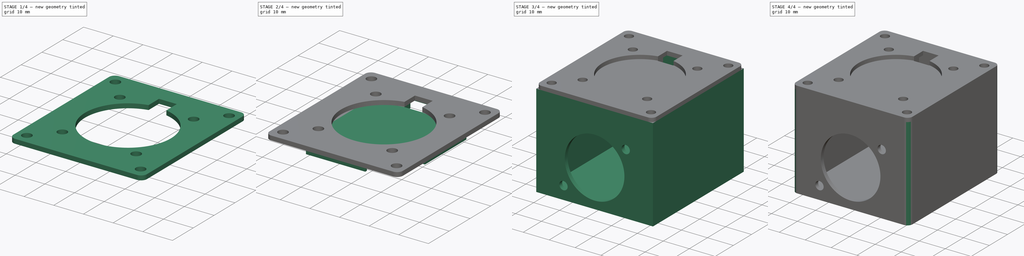
[diagram: build sequence overview — one tinted view per stage of 4, left to right]
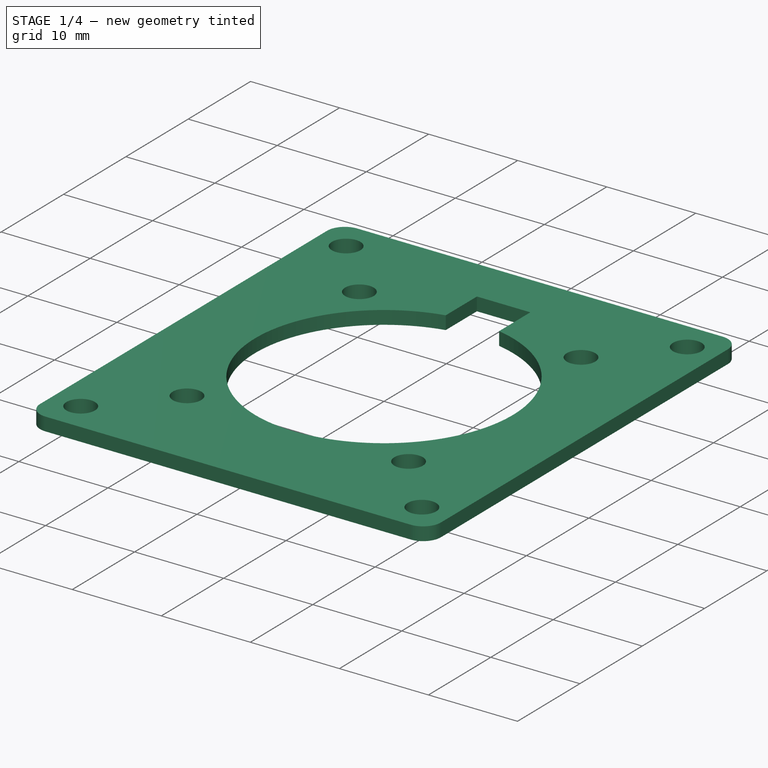
[diagram: stage 1 of 4 — iso view after this stage's code; geometry added in this stage tinted green]
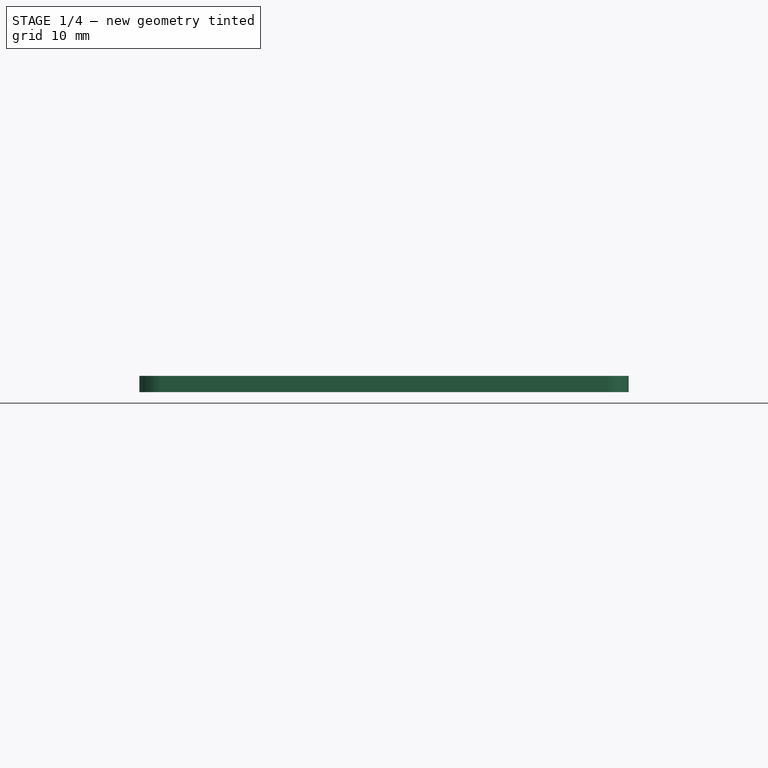
[diagram: stage 1 of 4 — front view after this stage's code; geometry added in this stage tinted green]
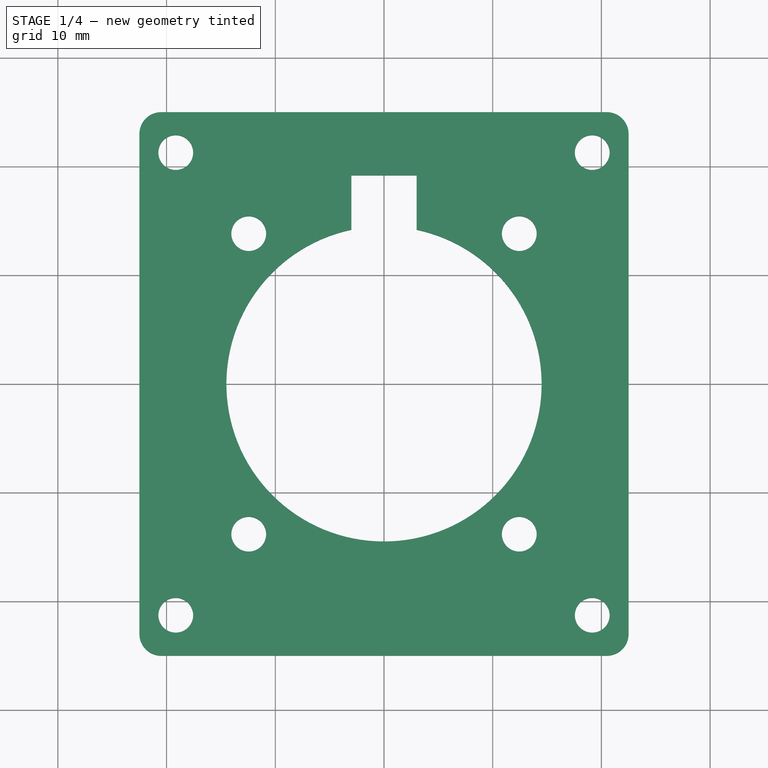
[diagram: stage 1 of 4 — top view after this stage's code; geometry added in this stage tinted green]
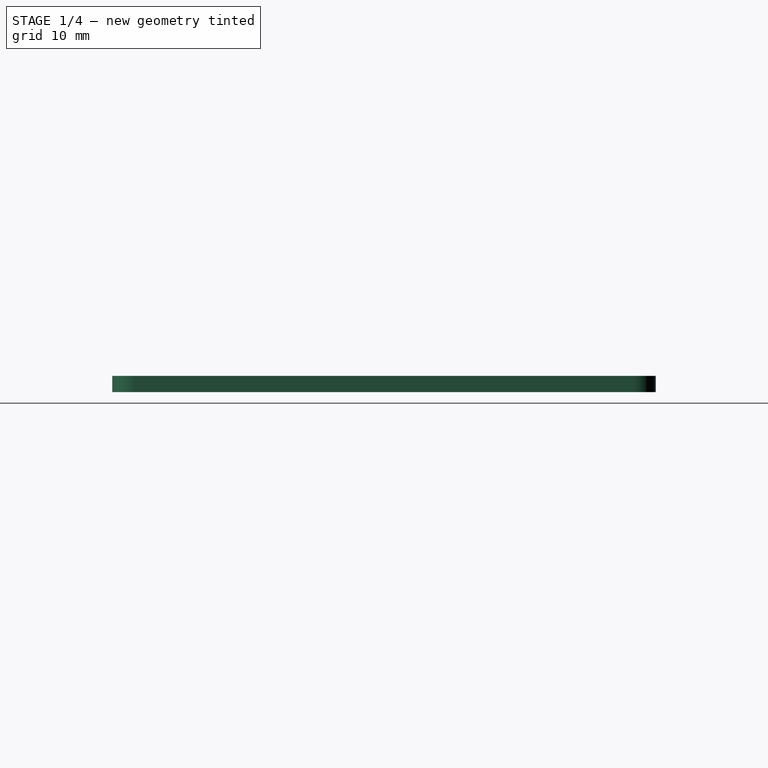
[diagram: stage 1 of 4 — right view after this stage's code; geometry added in this stage tinted green]
FCSTD DOCUMENT  (FreeCAD 0.19R24415 (Git))
Label: TAPhantomPowerCase
License: All rights reserved
LicenseURL: http://en.wikipedia.org/wiki/All_rights_reserved
objects: Sketcher::SketchObject×7, PartDesign::Pad×5, PartDesign::Fillet×3, PartDesign::Body×3, App::MeasureDistance×3, PartDesign::Pocket×2, PartDesign::ShapeBinder×2
note: 32 computed .brp shape members not serialized (recipe doc carries the construction recipe); baked Part::Feature solids carry a one-line shape summary decoded from their .brp

FEATURE [PartDesign::ShapeBinder] CopyPocket001
  Placement = pos=(0,0,35) rot=(0,0,1;0rad)
  TraceSupport = false
FEATURE [Sketcher::SketchObject] Sketch004
  FullyConstrained = true
  MapMode = 5
  Placement = pos=(0,0,36) rot=(0,0,1;0rad)
  Support = -> [CopyPocket001]
  sketch-geometry (18):
    g0: LineSegment StartX=-22.5 StartY=25 StartZ=0 EndX=22.5 EndY=25 EndZ=0
    g1: LineSegment StartX=22.5 StartY=25 StartZ=0 EndX=22.5 EndY=-25 EndZ=0
    g2: LineSegment StartX=22.5 StartY=-25 StartZ=0 EndX=-22.5 EndY=-25 EndZ=0
    g3: LineSegment StartX=-22.5 StartY=-25 StartZ=0 EndX=-22.5 EndY=25 EndZ=0
    g4: LineSegment StartX=-22.5 StartY=25 StartZ=0 EndX=22.5 EndY=-25 EndZ=0
    g5: LineSegment StartX=22.5 StartY=25 StartZ=0 EndX=-22.5 EndY=-25 EndZ=0
    g6: Circle CenterX=-19.1552 CenterY=21.2835 CenterZ=0 NormalX=0 NormalY=0 NormalZ=1 AngleXU=0 Radius=1.6
    g7: Circle CenterX=19.1552 CenterY=21.2835 CenterZ=0 NormalX=0 NormalY=0 NormalZ=1 AngleXU=0 Radius=1.6
    g8: Circle CenterX=19.1552 CenterY=-21.2835 CenterZ=0 NormalX=0 NormalY=0 NormalZ=1 AngleXU=0 Radius=1.6
    g9: Circle CenterX=-19.1552 CenterY=-21.2835 CenterZ=0 NormalX=0 NormalY=0 NormalZ=1 AngleXU=0 Radius=1.6
    g10: ArcOfCircle CenterX=0 CenterY=0 CenterZ=0 NormalX=0 NormalY=0 NormalZ=1 AngleXU=0 Radius=14.5 StartAngle=1.7792 EndAngle=7.64558
    g11: Circle CenterX=12.4427 CenterY=13.8253 CenterZ=0 NormalX=0 NormalY=0 NormalZ=1 AngleXU=0 Radius=1.6
    g12: Circle CenterX=-12.4427 CenterY=13.8253 CenterZ=0 NormalX=0 NormalY=0 NormalZ=1 AngleXU=0 Radius=1.6
    g13: Circle CenterX=-12.4427 CenterY=-13.8253 CenterZ=0 NormalX=0 NormalY=0 NormalZ=1 AngleXU=0 Radius=1.6
    g14: Circle CenterX=12.4427 CenterY=-13.8253 CenterZ=0 NormalX=0 NormalY=0 NormalZ=1 AngleXU=0 Radius=1.6
    g15: LineSegment StartX=-3 StartY=14.1863 StartZ=0 EndX=-3 EndY=19.1863 EndZ=0
    g16: LineSegment StartX=-3 StartY=19.1863 StartZ=0 EndX=3 EndY=19.1863 EndZ=0
    g17: LineSegment StartX=3 StartY=19.1863 StartZ=0 EndX=3 EndY=14.1863 EndZ=0
  constraints (49):
    c: Coincident(g0,g1)
    c: Coincident(g1,g2)
    c: Coincident(g2,g3)
    c: Coincident(g3,g0)
    c: Horizontal(g2)
    c: Vertical(g1)
    c: Distance(g1) = 50
    c: Distance(g0) = 45
    c: Symmetric(g0,g2,g-1)
    c: Symmetric(g0,g0,g-2)
    c: Coincident(g4,g0)
    c: Coincident(g4,g1)
    c: Coincident(g5,g0)
    c: Coincident(g5,g2)
    c: PointOnObject(g6,g4)
    c: PointOnObject(g7,g5)
    c: PointOnObject(g8,g4)
    c: PointOnObject(g9,g5)
    c: Horizontal(g9,g8)
    c: Horizontal(g6,g7)
    c: Vertical(g6,g9)
    c: Diameter(g6) = 3.2
    c: Diameter(g7) = 3.2
    c: Diameter(g9) = 3.2
    c: Diameter(g8) = 3.2
    c: Distance(g6,g0) = 5
    c: Coincident(g10,g-1)
    c: PointOnObject(g11,g5)
    c: PointOnObject(g12,g4)
    c: PointOnObject(g13,g5)
    c: PointOnObject(g14,g4)
    c: Vertical(g15)
    c: Coincident(g16,g15)
    c: Vertical(g17)
    c: Symmetric(g15,g16,g-2)
    c: Distance(g17) = 5
    c: Distance(g16) = 6
    c: Diameter(g10) = 29
    c: Horizontal(g12,g11)
    c: Horizontal(g14,g13)
    c: Vertical(g13,g12)
    c: Diameter(g12) = 3.2
    c: Diameter(g11) = 3.2
    c: Diameter(g14) = 3.2
    c: Diameter(g13) = 3.2
    c: Coincident(g16,g17)
    c: Distance(g12,g10) = 18.6
    c: Coincident(g10,g15)
    c: Coincident(g10,g17)
FEATURE [PartDesign::Pad] Pad002
  Direction = (1,1,1)
  Length = 1.5
  Length2 = 100
  Placement = pos=(0,0,35) rot=(0,0,1;0rad)
  Profile = -> Sketch004
  Type = 0
FEATURE [PartDesign::Body] Body  label="Case"
  Group = -> [Sketch,Pad,Sketch001,Pad001,Sketch002,Pocket,Sketch003,Pocket001,Fillet]
  Origin = -> Origin
  Tip = -> Fillet
FEATURE [PartDesign::Fillet] Fillet001
  Base = -> Pad002 [Edge1,Edge2,Edge5,Edge8]
  BaseFeature = -> Pad002
  Placement = pos=(0,0,35) rot=(0,0,1;0rad)
  Radius = 2
  SupportTransform = false
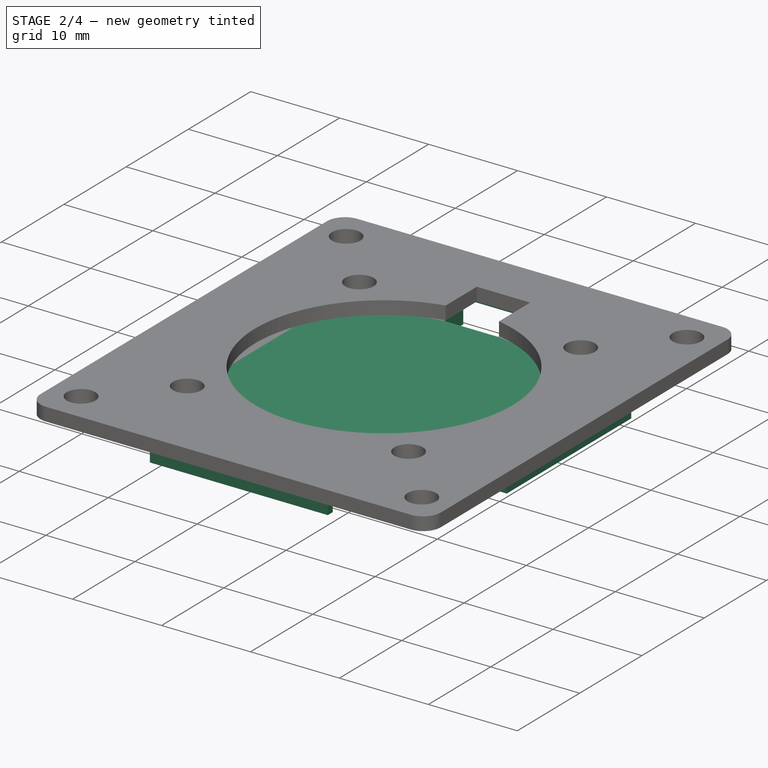
[diagram: stage 2 of 4 — iso view after this stage's code; geometry added in this stage tinted green]
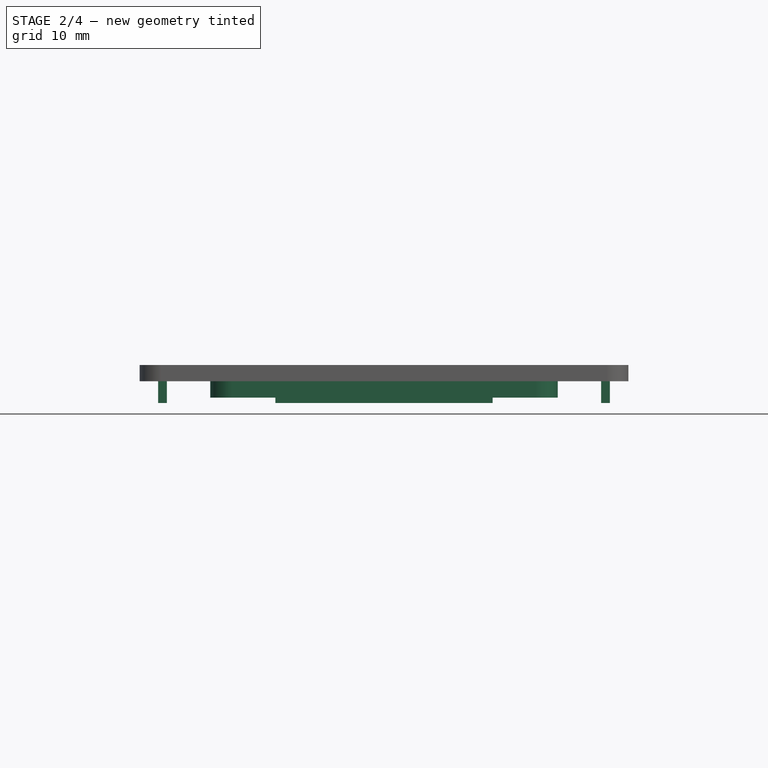
[diagram: stage 2 of 4 — front view after this stage's code; geometry added in this stage tinted green]
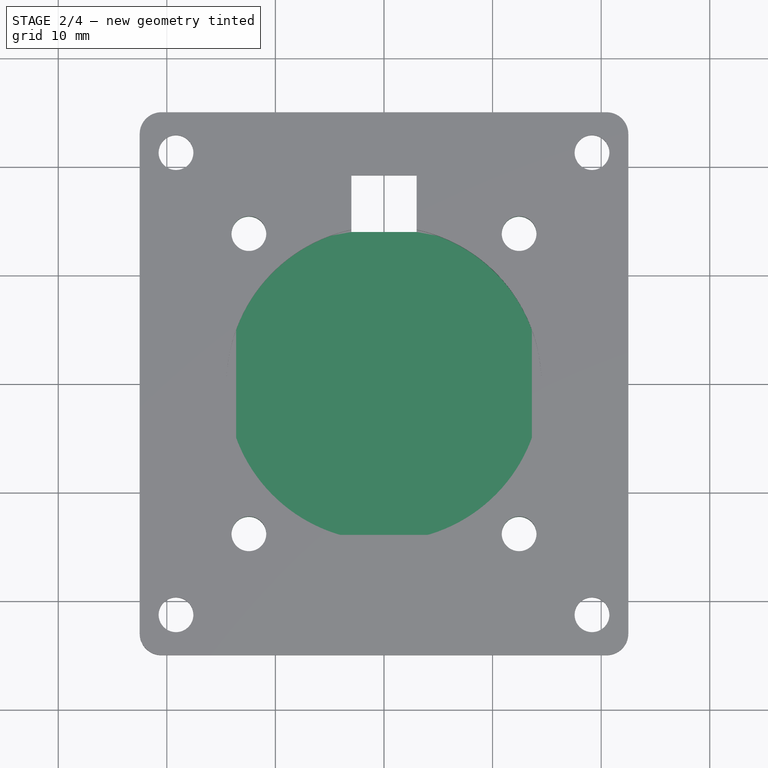
[diagram: stage 2 of 4 — top view after this stage's code; geometry added in this stage tinted green]
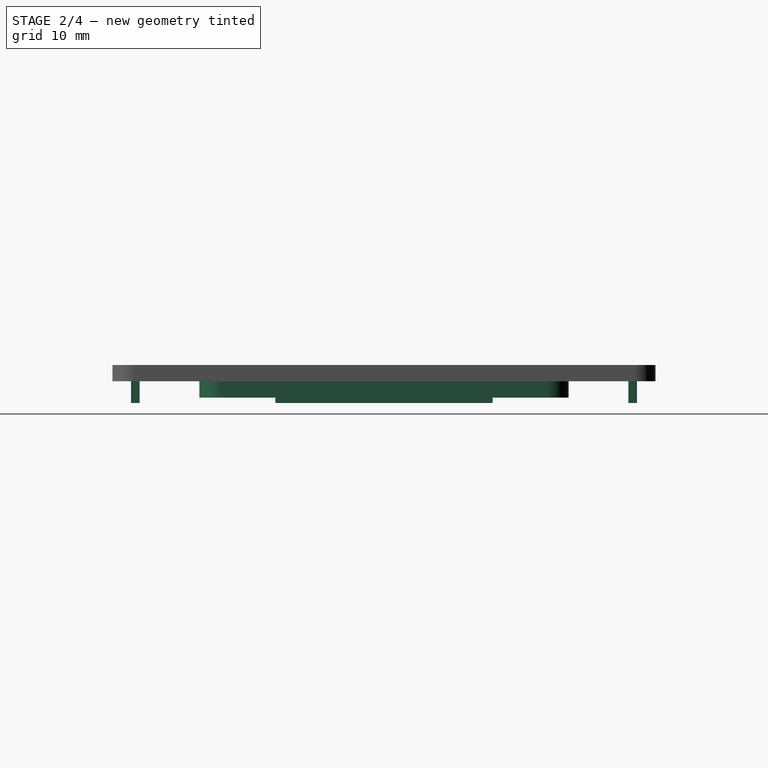
[diagram: stage 2 of 4 — right view after this stage's code; geometry added in this stage tinted green]
FEATURE [PartDesign::ShapeBinder] CopyPad003
  Placement = pos=(0,0,35) rot=(0,0,1;0rad)
  TraceSupport = false
FEATURE [Sketcher::SketchObject] Sketch006
  FullyConstrained = true
  MapMode = 5
  Placement = pos=(0,0,36) rot=(1,0,0;3.14159rad)
  Support = -> [CopyPad003]
  expr: Constraints[17] = 17 * 2
  sketch-geometry (18):
    g0: LineSegment StartX=-16 StartY=17 StartZ=0 EndX=16 EndY=17 EndZ=0
    g1: LineSegment StartX=16 StartY=17 StartZ=0 EndX=16 EndY=-17 EndZ=0
    g2: LineSegment StartX=16 StartY=-17 StartZ=0 EndX=3 EndY=-17 EndZ=0
    g3: LineSegment StartX=-16 StartY=-17 StartZ=0 EndX=-16 EndY=17 EndZ=0
    g4: LineSegment StartX=-22.5 StartY=25 StartZ=0 EndX=22.5 EndY=25 EndZ=0
    g5: LineSegment StartX=22.5 StartY=25 StartZ=0 EndX=22.5 EndY=-25 EndZ=0
    g6: LineSegment StartX=22.5 StartY=-25 StartZ=0 EndX=-22.5 EndY=-25 EndZ=0
    g7: LineSegment StartX=-22.5 StartY=-25 StartZ=0 EndX=-22.5 EndY=25 EndZ=0
    g8: Circle CenterX=-12.4427 CenterY=13.8253 CenterZ=0 NormalX=0 NormalY=0 NormalZ=1 AngleXU=0 Radius=1.6
    g9: Circle CenterX=12.4427 CenterY=13.8253 CenterZ=0 NormalX=0 NormalY=0 NormalZ=1 AngleXU=0 Radius=1.6
    g10: Circle CenterX=-12.4427 CenterY=-13.8253 CenterZ=0 NormalX=0 NormalY=0 NormalZ=1 AngleXU=0 Radius=1.6
    g11: Circle CenterX=12.4427 CenterY=-13.8253 CenterZ=0 NormalX=0 NormalY=0 NormalZ=1 AngleXU=0 Radius=1.6
    g12: LineSegment StartX=-3 StartY=-17 StartZ=0 EndX=-3 EndY=-14 EndZ=0
    g13: LineSegment StartX=-3 StartY=-14 StartZ=0 EndX=3 EndY=-14 EndZ=0
    g14: LineSegment StartX=3 StartY=-14 StartZ=0 EndX=3 EndY=-17 EndZ=0
    g15: LineSegment StartX=-22.5 StartY=25 StartZ=0 EndX=22.5 EndY=-25 EndZ=0
    g16: LineSegment StartX=22.5 StartY=25 StartZ=0 EndX=-22.5 EndY=-25 EndZ=0
    g17: LineSegment StartX=-3 StartY=-17 StartZ=0 EndX=-16 EndY=-17 EndZ=0
  constraints (46):
    c: Coincident(g0,g1)
    c: Coincident(g1,g2)
    c: Coincident(g17,g3)
    c: Coincident(g3,g0)
    c: Horizontal(g2)
    c: Vertical(g3)
    c: Coincident(g4,g5)
    c: Coincident(g5,g6)
    c: Coincident(g6,g7)
    c: Coincident(g7,g4)
    c: Horizontal(g6)
    c: Vertical(g7)
    c: Distance(g4) = 45
    c: Distance(g5) = 50
    c: Symmetric(g4,g4,g-2)
    c: Symmetric(g4,g5,g-1)
    c: Distance(g0) = 32
    c: Distance(g1) = 34
    c: Symmetric(g0,g0,g-2)
    c: Symmetric(g0,g1,g-1)
    c: Coincident(g14,g13)
    c: Coincident(g15,g4)
    c: Coincident(g15,g5)
    c: Coincident(g16,g4)
    c: Coincident(g16,g6)
    c: Diameter(g8) = 3.2
    c: Diameter(g9) = 3.2
    c: Diameter(g11) = 3.2
    c: Diameter(g10) = 3.2
    c: PointOnObject(g8,g15)
    c: PointOnObject(g9,g16)
    c: PointOnObject(g11,g15)
    c: PointOnObject(g10,g16)
    c: Horizontal(g10,g11)
    c: Horizontal(g8,g9)
    c: Vertical(g8,g10)
    c: Distance(g-1,g8) = 18.6
    c: Vertical(g12)
    c: Vertical(g14)
    c: Symmetric(g13,g13,g-2)
    c: Coincident(g12,g13)
    c: Distance(g14) = 3
    c: Distance(g13) = 6
    c: Coincident(g2,g14)
    c: Coincident(g17,g12)
    c: Tangent(g2,g17)
FEATURE [PartDesign::Pad] Pad003
  Direction = (1,1,1)
  Length = 1.5
  Length2 = 100
  Placement = pos=(0,0,35) rot=(0,0,1;0rad)
  Profile = -> Sketch006
  Type = 0
FEATURE [PartDesign::Fillet] Fillet002
  Base = -> Pad003 [Edge2,Edge5,Edge11,Edge8]
  BaseFeature = -> Pad003
  Placement = pos=(0,0,35) rot=(0,0,1;0rad)
  Radius = 2
  SupportTransform = false
FEATURE [PartDesign::Body] Body002  label="SocketHolder"
  Group = -> [CopyPad003,Sketch006,Pad003,Fillet002]
  Origin = -> Origin002
  Tip = -> Fillet002
FEATURE [App::MeasureDistance] Distance  label="Distance: 37,48 mm"
  Distance = 37.4811
  P1 = (20.5,25,37.5)
  P2 = (20.5,25,0.0189125)
FEATURE [App::MeasureDistance] Distance001  label="Distance: 46,80 mm"
  Distance = 46.8
  P1 = (-18.9,23.4,36)
  P2 = (-18.9,-23.4,36)
FEATURE [App::MeasureDistance] Distance002  label="Distance: 41,80 mm"
  Distance = 41.8
  P1 = (-20.9,21.4,36)
  P2 = (20.9,21.4,36)
FEATURE [Sketcher::SketchObject] Sketch007
  ExternalGeometry = -> [Sketch004]
  FullyConstrained = true
  MapMode = 5
  Placement = pos=(0,0,36) rot=(1,0,0;3.14159rad)
  Support = -> [Fillet001]
  sketch-geometry (16):
    g0: LineSegment StartX=-10 StartY=23.3 StartZ=0 EndX=10 EndY=23.3 EndZ=0
    g1: LineSegment StartX=10 StartY=23.3 StartZ=0 EndX=10 EndY=22.5 EndZ=0
    g2: LineSegment StartX=10 StartY=22.5 StartZ=0 EndX=-10 EndY=22.5 EndZ=0
    g3: LineSegment StartX=-10 StartY=22.5 StartZ=0 EndX=-10 EndY=23.3 EndZ=0
    g4: LineSegment StartX=20.8 StartY=10 StartZ=0 EndX=20 EndY=10 EndZ=0
    g5: LineSegment StartX=20 StartY=10 StartZ=0 EndX=20 EndY=-10 EndZ=0
    g6: LineSegment StartX=20 StartY=-10 StartZ=0 EndX=20.8 EndY=-10 EndZ=0
    g7: LineSegment StartX=20.8 StartY=-10 StartZ=0 EndX=20.8 EndY=10 EndZ=0
    g8: LineSegment StartX=-10 StartY=-23.3 StartZ=0 EndX=10 EndY=-23.3 EndZ=0
    g9: LineSegment StartX=10 StartY=-23.3 StartZ=0 EndX=10 EndY=-22.5 EndZ=0
    g10: LineSegment StartX=10 StartY=-22.5 StartZ=0 EndX=-10 EndY=-22.5 EndZ=0
    g11: LineSegment StartX=-10 StartY=-22.5 StartZ=0 EndX=-10 EndY=-23.3 EndZ=0
    g12: LineSegment StartX=-20 StartY=-10 StartZ=0 EndX=-20.8 EndY=-10 EndZ=0
    g13: LineSegment StartX=-20.8 StartY=-10 StartZ=0 EndX=-20.8 EndY=10 EndZ=0
    g14: LineSegment StartX=-20.8 StartY=10 StartZ=0 EndX=-20 EndY=10 EndZ=0
    g15: LineSegment StartX=-20 StartY=10 StartZ=0 EndX=-20 EndY=-10 EndZ=0
  constraints (46):
    c: Coincident(g0,g1)
    c: Coincident(g1,g2)
    c: Coincident(g2,g3)
    c: Coincident(g3,g0)
    c: Horizontal(g2)
    c: Vertical(g1)
    c: Vertical(g3)
    c: Coincident(g4,g5)
    c: Coincident(g5,g6)
    c: Coincident(g6,g7)
    c: Coincident(g7,g4)
    c: Horizontal(g4)
    c: Horizontal(g6)
    c: Vertical(g5)
    c: Coincident(g8,g9)
    c: Coincident(g9,g10)
    c: Coincident(g10,g11)
    c: Coincident(g11,g8)
    c: Horizontal(g8)
    c: Horizontal(g10)
    c: Vertical(g9)
    c: Vertical(g11)
    c: Coincident(g12,g13)
    c: Coincident(g13,g14)
    c: Coincident(g14,g15)
    c: Coincident(g15,g12)
    c: Horizontal(g12)
    c: Horizontal(g14)
    c: Vertical(g13)
    c: Vertical(g15)
    c: Vertical(g2,g10)
    c: Vertical(g9,g1)
    c: Horizontal(g4,g14)
    c: Horizontal(g12,g5)
    c: Symmetric(g4,g6,g-1)
    c: Symmetric(g0,g0,g-2)
    c: DistanceX(g-6,g13) = 1.7
    c: Distance(g14) = 0.8
    c: Distance(g3) = 0.8
    c: Distance(g4) = 0.8
    c: Distance(g11) = 0.8
    c: DistanceX(g4,g-4) = 1.7
    c: DistanceY(g0,g-6) = 1.7
    c: DistanceY(g-6,g8) = 1.7
    c: Distance(g2) = 20
    c: Distance(g5) = 20
FEATURE [PartDesign::Pad] Pad004
  BaseFeature = -> Fillet001
  Direction = (1,1,1)
  Length = 2
  Length2 = 100
  Placement = pos=(0,0,35) rot=(0,0,1;0rad)
  Profile = -> Sketch007
  Type = 0
FEATURE [PartDesign::Body] Body001  label="Lid"
  Group = -> [CopyPocket001,Sketch004,Pad002,Fillet001,Sketch007,Pad004]
  Origin = -> Origin001
  Tip = -> Pad004
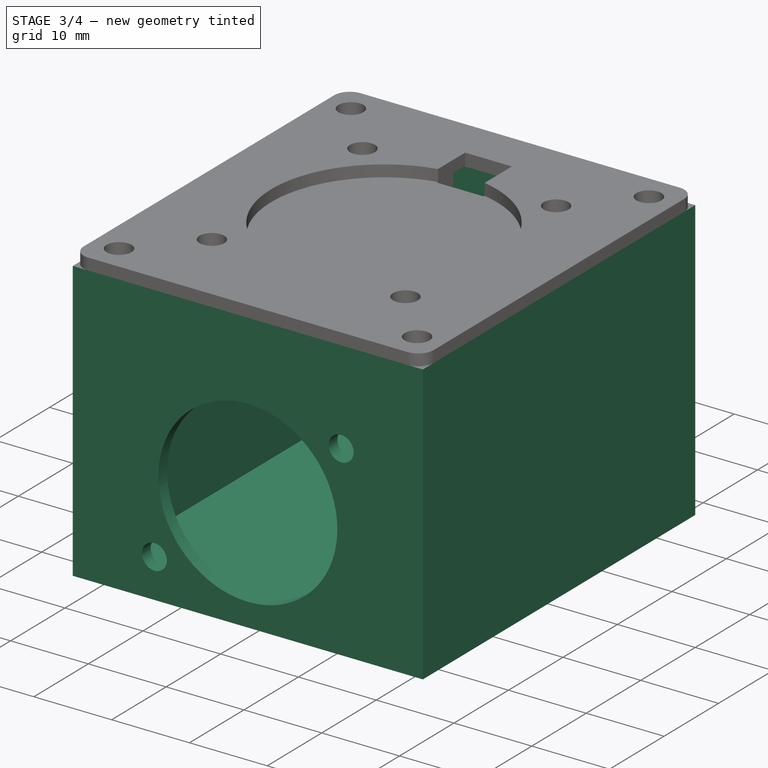
[diagram: stage 3 of 4 — iso view after this stage's code; geometry added in this stage tinted green]
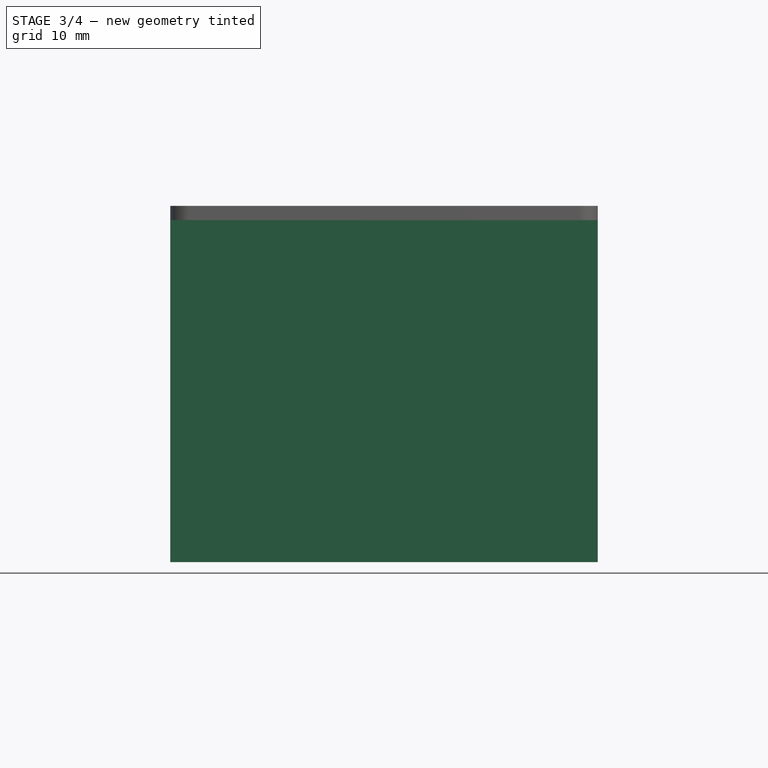
[diagram: stage 3 of 4 — front view after this stage's code; geometry added in this stage tinted green]
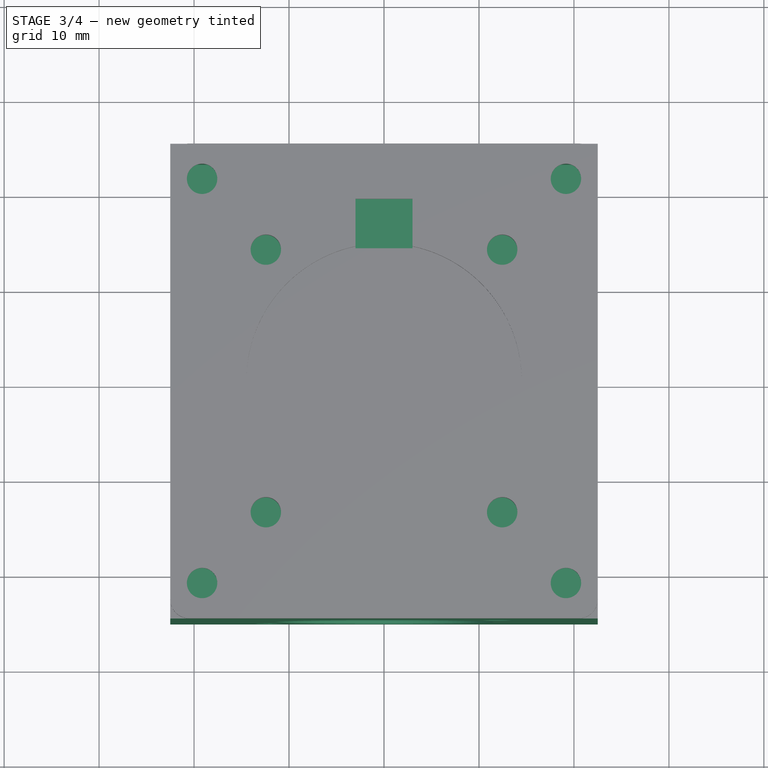
[diagram: stage 3 of 4 — top view after this stage's code; geometry added in this stage tinted green]
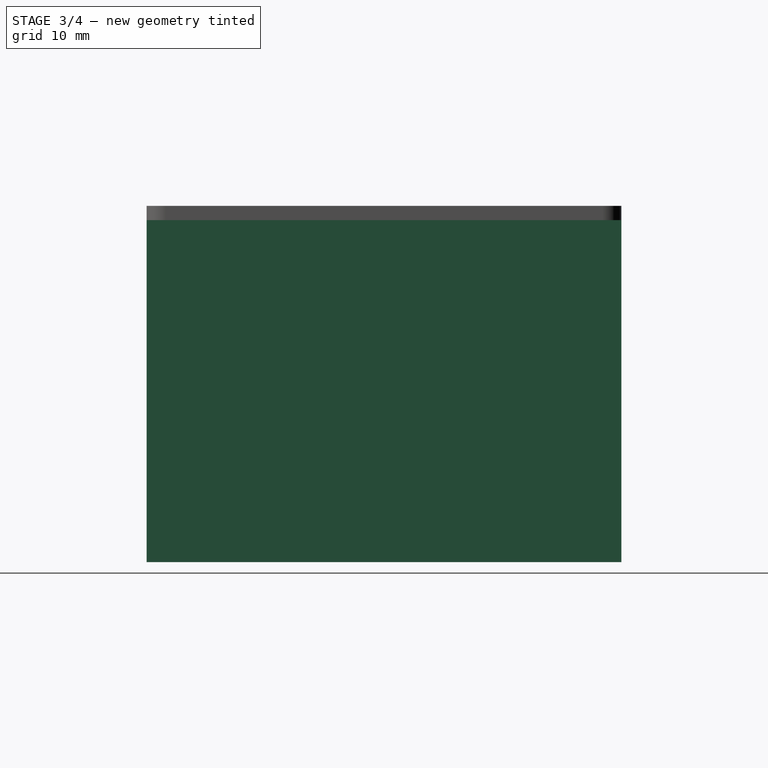
[diagram: stage 3 of 4 — right view after this stage's code; geometry added in this stage tinted green]
FEATURE [Sketcher::SketchObject] Sketch
  FullyConstrained = true
  MapMode = 5
  Support = -> [XY_Plane]
  sketch-geometry (4):
    g0: LineSegment StartX=-22.5 StartY=25 StartZ=0 EndX=22.5 EndY=25 EndZ=0
    g1: LineSegment StartX=22.5 StartY=25 StartZ=0 EndX=22.5 EndY=-25 EndZ=0
    g2: LineSegment StartX=22.5 StartY=-25 StartZ=0 EndX=-22.5 EndY=-25 EndZ=0
    g3: LineSegment StartX=-22.5 StartY=-25 StartZ=0 EndX=-22.5 EndY=25 EndZ=0
  constraints (10):
    c: Coincident(g0,g1)
    c: Coincident(g1,g2)
    c: Coincident(g2,g3)
    c: Coincident(g3,g0)
    c: Horizontal(g0)
    c: Vertical(g1)
    c: Symmetric(g2,g1,g-2)
    c: Symmetric(g0,g2,g-1)
    c: Distance(g3) = 50
    c: Distance(g2) = 45
FEATURE [PartDesign::Pad] Pad
  Direction = (1,1,1)
  Length = 1
  Length2 = 100
  Profile = -> Sketch
  Type = 0
FEATURE [Sketcher::SketchObject] Sketch001
  ExternalGeometry = -> [Pad]
  FullyConstrained = true
  MapMode = 5
  Placement = pos=(0,0,1) rot=(0,0,1;0rad)
  Support = -> [Pad]
  sketch-geometry (8):
    g0: LineSegment StartX=-22.5 StartY=25 StartZ=0 EndX=22.5 EndY=25 EndZ=0
    g1: LineSegment StartX=22.5 StartY=25 StartZ=0 EndX=22.5 EndY=-25 EndZ=0
    g2: LineSegment StartX=22.5 StartY=-25 StartZ=0 EndX=-22.5 EndY=-25 EndZ=0
    g3: LineSegment StartX=-22.5 StartY=-25 StartZ=0 EndX=-22.5 EndY=25 EndZ=0
    g4: LineSegment StartX=-20.9 StartY=23.4 StartZ=0 EndX=20.9 EndY=23.4 EndZ=0
    g5: LineSegment StartX=20.9 StartY=23.4 StartZ=0 EndX=20.9 EndY=-23.4 EndZ=0
    g6: LineSegment StartX=20.9 StartY=-23.4 StartZ=0 EndX=-20.9 EndY=-23.4 EndZ=0
    g7: LineSegment StartX=-20.9 StartY=-23.4 StartZ=0 EndX=-20.9 EndY=23.4 EndZ=0
  constraints (20):
    c: Coincident(g0,g1)
    c: Coincident(g1,g2)
    c: Coincident(g2,g3)
    c: Coincident(g3,g0)
    c: Horizontal(g0)
    c: Horizontal(g2)
    c: Vertical(g1)
    c: Vertical(g3)
    c: Coincident(g0,g-3)
    c: Coincident(g1,g-4)
    c: Coincident(g4,g5)
    c: Coincident(g5,g6)
    c: Coincident(g6,g7)
    c: Coincident(g7,g4)
    c: Horizontal(g6)
    c: Vertical(g5)
    c: Symmetric(g6,g4,g-1)
    c: Symmetric(g4,g4,g-2)
    c: DistanceX(g0,g4) = 1.6
    c: DistanceY(g4,g0) = 1.6
FEATURE [PartDesign::Pad] Pad001
  BaseFeature = -> Pad
  Direction = (1,1,1)
  Length = 35
  Length2 = 100
  Profile = -> Sketch001
  Type = 0
FEATURE [Sketcher::SketchObject] Sketch002
  ExternalGeometry = -> [Pad001]
  FullyConstrained = true
  MapMode = 5
  Placement = pos=(0,-25,0) rot=(1,0,0;1.5708rad)
  Support = -> [Pad001]
  expr: Constraints[7] = 24 / 2
  expr: Constraints[6] = 19 / 2
  sketch-geometry (3):
    g0: Circle CenterX=0 CenterY=14.5 CenterZ=0 NormalX=0 NormalY=0 NormalZ=1 AngleXU=0 Radius=11.5
    g1: Circle CenterX=12 CenterY=24 CenterZ=0 NormalX=0 NormalY=0 NormalZ=1 AngleXU=0 Radius=1.6
    g2: Circle CenterX=-12 CenterY=5 CenterZ=0 NormalX=0 NormalY=0 NormalZ=1 AngleXU=0 Radius=1.6
  constraints (9):
    c: PointOnObject(g0,g-2)
    c: Diameter(g0) = 23
    c: Diameter(g1) = 3.2
    c: Diameter(g2) = 3.2
    c: DistanceX(g2,g1) = 24
    c: DistanceY(g2,g1) = 19
    c: DistanceY(g2,g0) = 9.5
    c: DistanceX(g2,g0) = 12
    c: DistanceY(g-3,g2) = 4
FEATURE [PartDesign::Pocket] Pocket
  BaseFeature = -> Pad001
  Length = 5
  Length2 = 100
  Profile = -> Sketch002
  Type = 0
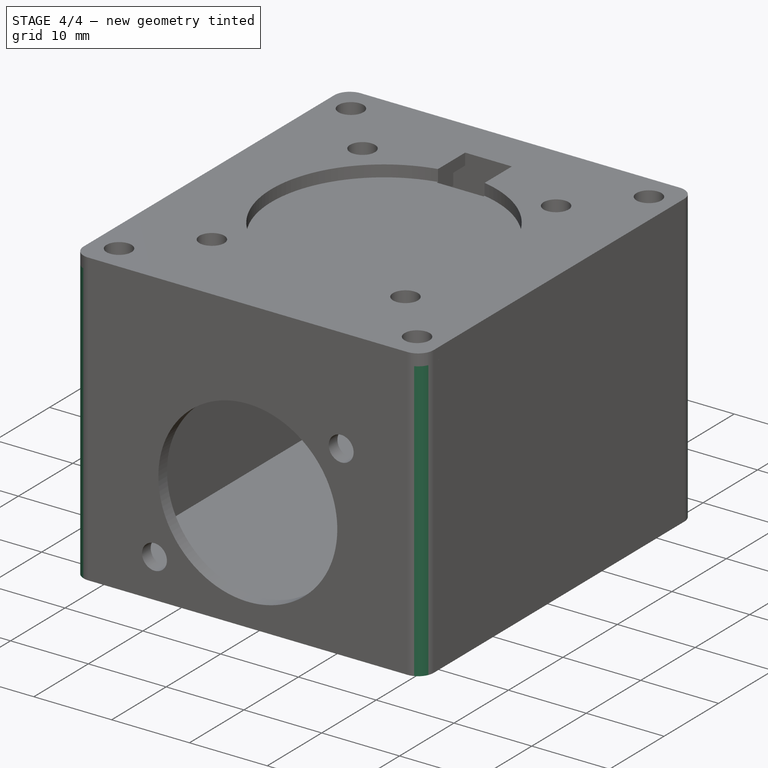
[diagram: stage 4 of 4 — iso view after this stage's code; geometry added in this stage tinted green]
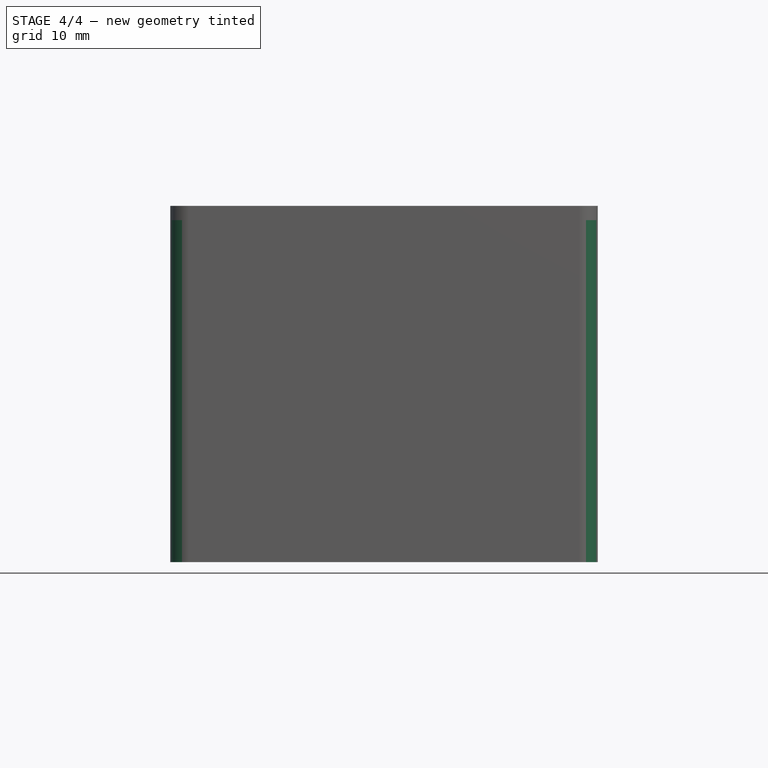
[diagram: stage 4 of 4 — front view after this stage's code; geometry added in this stage tinted green]
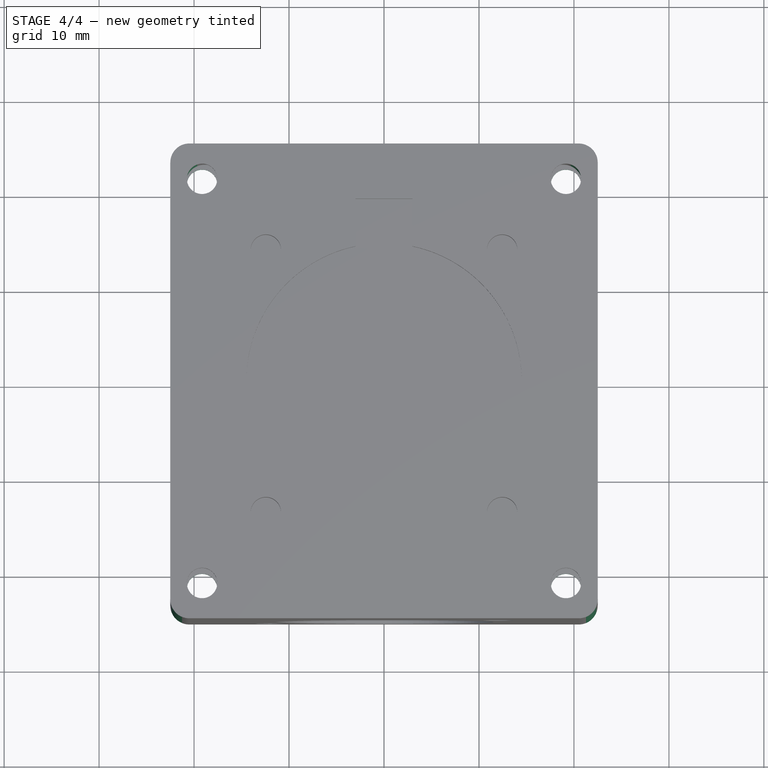
[diagram: stage 4 of 4 — top view after this stage's code; geometry added in this stage tinted green]
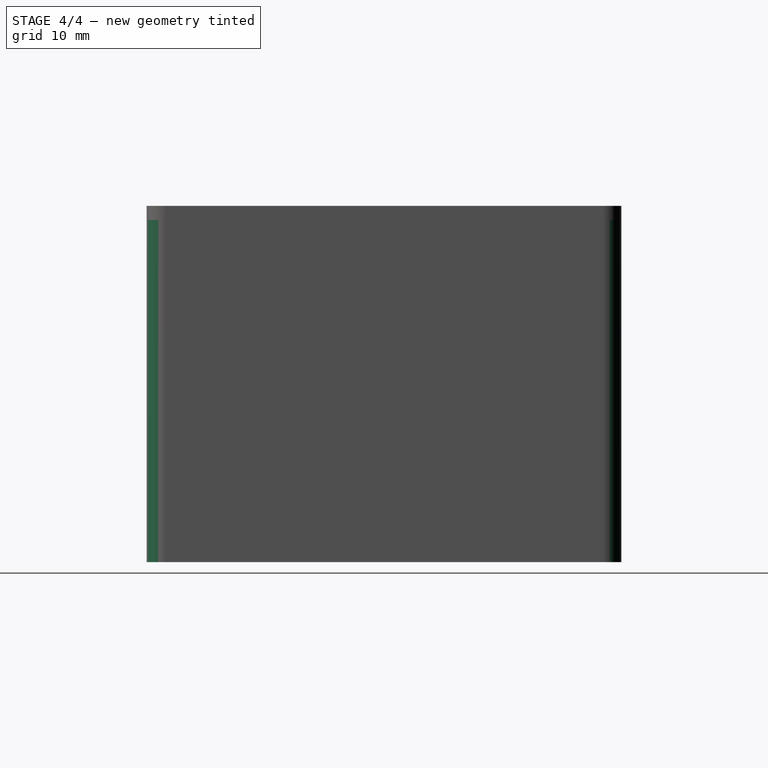
[diagram: stage 4 of 4 — right view after this stage's code; geometry added in this stage tinted green]
FEATURE [Sketcher::SketchObject] Sketch003
  ExternalGeometry = -> [Pocket]
  FullyConstrained = true
  MapMode = 5
  Placement = pos=(0,0,1) rot=(0,0,1;0rad)
  Support = -> [Pocket]
  sketch-geometry (6):
    g0: LineSegment StartX=-22.5 StartY=25 StartZ=0 EndX=22.5 EndY=-25 EndZ=0
    g1: LineSegment StartX=-22.5 StartY=-25 StartZ=0 EndX=22.5 EndY=25 EndZ=0
    g2: Circle CenterX=-19.1552 CenterY=21.2835 CenterZ=0 NormalX=0 NormalY=0 NormalZ=1 AngleXU=0 Radius=1.6
    g3: Circle CenterX=19.1552 CenterY=21.2835 CenterZ=0 NormalX=0 NormalY=0 NormalZ=1 AngleXU=0 Radius=1.6
    g4: Circle CenterX=-19.1552 CenterY=-21.2835 CenterZ=0 NormalX=0 NormalY=0 NormalZ=1 AngleXU=0 Radius=1.6
    g5: Circle CenterX=19.1552 CenterY=-21.2835 CenterZ=0 NormalX=0 NormalY=0 NormalZ=1 AngleXU=0 Radius=1.6
  constraints (16):
    c: Coincident(g0,g-3)
    c: Coincident(g0,g-4)
    c: Coincident(g1,g-6)
    c: Coincident(g1,g-5)
    c: PointOnObject(g2,g0)
    c: PointOnObject(g3,g1)
    c: PointOnObject(g4,g1)
    c: PointOnObject(g5,g0)
    c: Vertical(g2,g4)
    c: Vertical(g3,g5)
    c: Horizontal(g2,g3)
    c: Diameter(g2) = 3.2
    c: Diameter(g3) = 3.2
    c: Diameter(g4) = 3.2
    c: Diameter(g5) = 3.2
    c: Distance(g2,g0) = 5
FEATURE [PartDesign::Pocket] Pocket001
  BaseFeature = -> Pocket
  Length = 5
  Length2 = 100
  Profile = -> Sketch003
  Type = 0
FEATURE [PartDesign::Fillet] Fillet
  Base = -> Pocket001 [Edge17,Edge22,Edge16,Edge20,Edge46,Edge50,Edge44,Edge45]
  BaseFeature = -> Pocket001
  Radius = 2
  SupportTransform = false
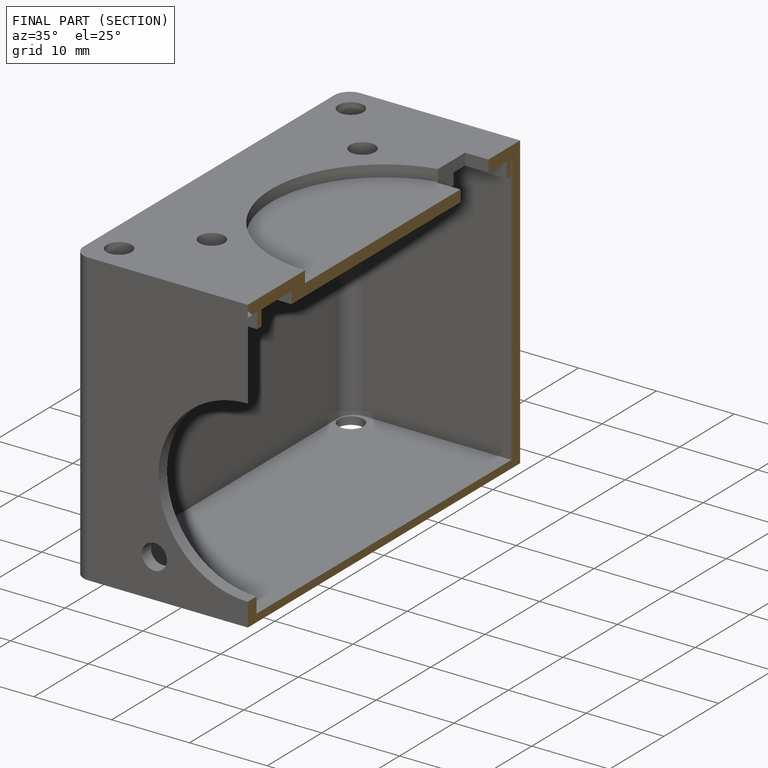
[diagram: finished part — half-section view (interior)]
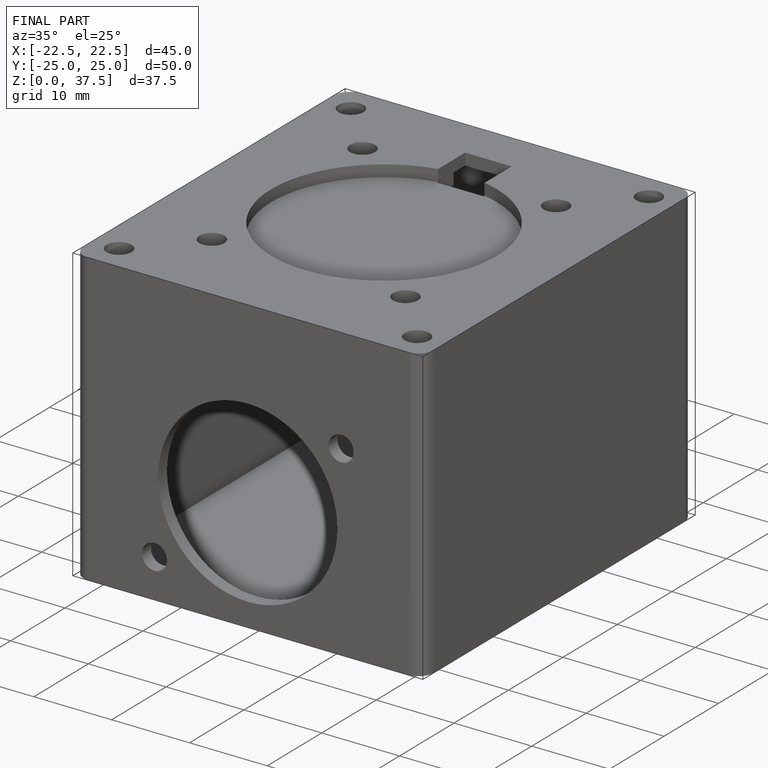
[diagram: finished part — iso view with bounding-box wireframe]
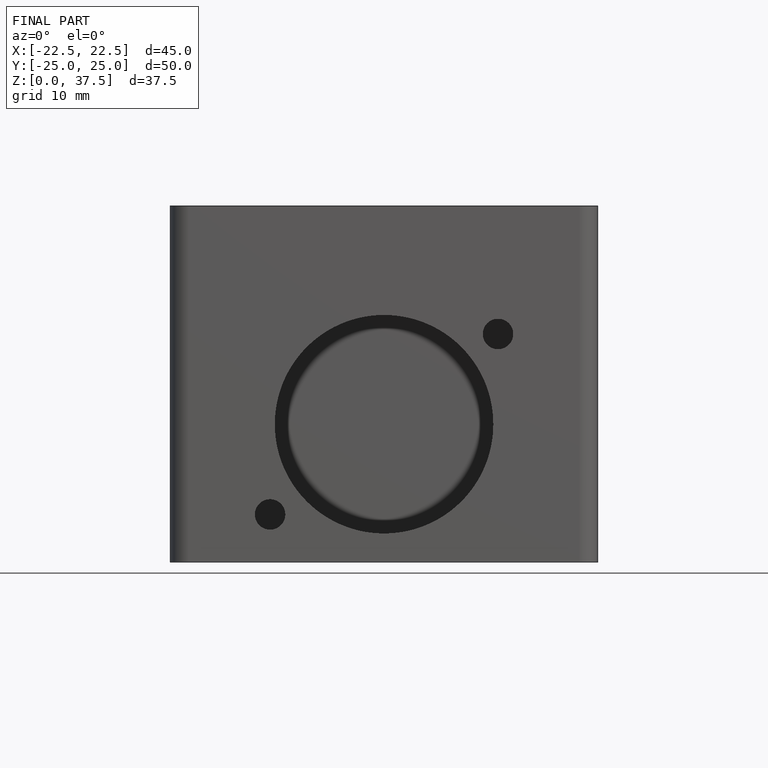
[diagram: finished part — front view with bounding-box wireframe]
